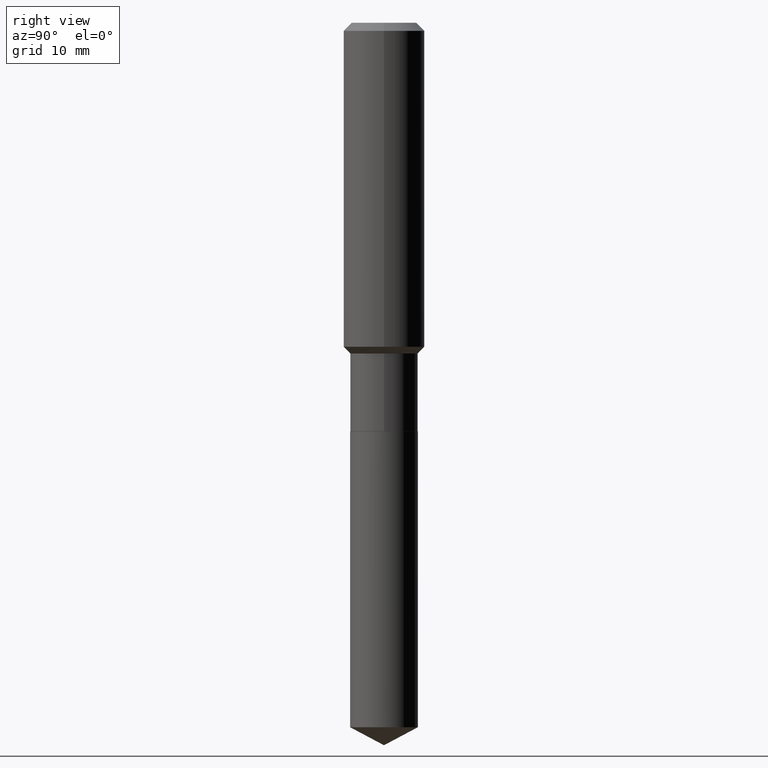
[diagram: clean part render]
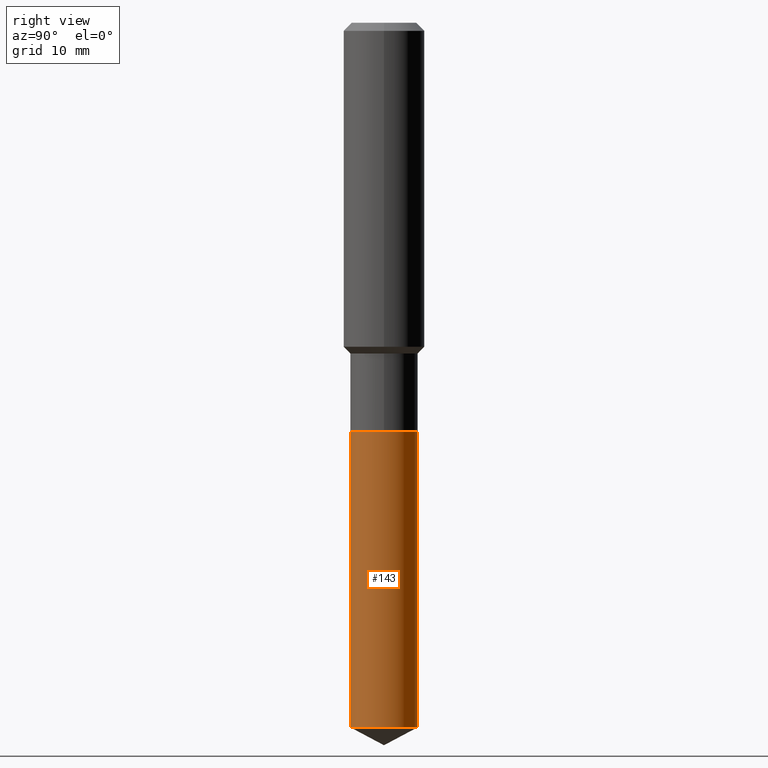
[diagram: same view with one face highlighted and labeled with its STEP entity id]
A machine part, right view. The second image highlights one B-rep face of the part: STEP entity #143.
In plain terms, the highlighted cylindrical surface (edge-blend (fillet) strip) has radius 4.1669 mm, axis along (-0, 0, 1).
Its self-contained STEP definition (entity closure, byte-faithful):
#1 = DIRECTION ( 'NONE',  ( -2.445609389385377886E-29, 3.491280015698900984E-15, 1.000000000000000000 ) ) ;
#18 = ORIENTED_EDGE ( 'NONE', *, *, #308, .T. ) ;
#19 = CARTESIAN_POINT ( 'NONE',  ( 1.165645358014527787E-15, 0.1640499999999880942, -3.416673067735934932 ) ) ;
#53 = VECTOR ( 'NONE', #307, 39.37007874015748143 ) ;
#58 = VERTEX_POINT ( 'NONE', #344 ) ;
#80 = FACE_OUTER_BOUND ( 'NONE', #264, .T. ) ;
#84 = DIRECTION ( 'NONE',  ( -6.982962677686265133E-15, -1.000000000000000000, 3.330506545156066257E-15 ) ) ;
#88 = ORIENTED_EDGE ( 'NONE', *, *, #133, .F. ) ;
#93 = DIRECTION ( 'NONE',  ( -2.445609389385378166E-29, 3.491280015698900589E-15, 1.000000000000000000 ) ) ;
#111 = AXIS2_PLACEMENT_3D ( 'NONE', #298, #113, #408 ) ;
#113 = DIRECTION ( 'NONE',  ( -2.445609389385377886E-29, 3.491280015698900984E-15, 1.000000000000000000 ) ) ;
#115 = LINE ( 'NONE', #267, #200 ) ;
#121 = CYLINDRICAL_SURFACE ( 'NONE', #184, 0.1640500000000000014 ) ;
#133 = EDGE_CURVE ( 'NONE', #58, #402, #156, .T. ) ;
#143 = ADVANCED_FACE ( 'NONE', ( #80 ), #121, .T. ) ;
#156 = CIRCLE ( 'NONE', #379, 0.1640500000000000014 ) ;
#178 = CARTESIAN_POINT ( 'NONE',  ( 1.165645358014492485E-15, 0.1640499999999930625, -1.981600000000000250 ) ) ;
#184 = AXIS2_PLACEMENT_3D ( 'NONE', #342, #305, #84 ) ;
#188 = CARTESIAN_POINT ( 'NONE',  ( -1.145555027274348438E-15, -0.1640500000000119085, -3.416673067735933600 ) ) ;
#200 = VECTOR ( 'NONE', #93, 39.37007874015748143 ) ;
#203 = EDGE_CURVE ( 'NONE', #446, #402, #370, .T. ) ;
#217 = ORIENTED_EDGE ( 'NONE', *, *, #365, .F. ) ;
#264 = EDGE_LOOP ( 'NONE', ( #18, #337, #88, #217 ) ) ;
#267 = CARTESIAN_POINT ( 'NONE',  ( -1.145555027274383345E-15, -0.1640500000000069125, -1.981599999999999140 ) ) ;
#297 = DIRECTION ( 'NONE',  ( -6.982962677686265133E-15, -1.000000000000000000, 3.330506545156066257E-15 ) ) ;
#298 = CARTESIAN_POINT ( 'NONE',  ( 8.355569155245545559E-29, -1.192896134350575963E-14, -3.416673067735934044 ) ) ;
#305 = DIRECTION ( 'NONE',  ( -2.445609389385377886E-29, 3.491280015698900984E-15, 1.000000000000000000 ) ) ;
#307 = DIRECTION ( 'NONE',  ( -2.445609389385378166E-29, 3.491280015698900589E-15, 1.000000000000000000 ) ) ;
#308 = EDGE_CURVE ( 'NONE', #316, #446, #464, .T. ) ;
#316 = VERTEX_POINT ( 'NONE', #188 ) ;
#337 = ORIENTED_EDGE ( 'NONE', *, *, #203, .T. ) ;
#342 = CARTESIAN_POINT ( 'NONE',  ( 4.845940986336466171E-29, -6.918719421051576678E-15, -1.981599999999999806 ) ) ;
#344 = CARTESIAN_POINT ( 'NONE',  ( -1.145555027274383345E-15, -0.1640500000000069125, -1.981599999999999140 ) ) ;
#347 = CARTESIAN_POINT ( 'NONE',  ( 1.165645358014527787E-15, 0.1640499999999930625, -1.981600000000000250 ) ) ;
#365 = EDGE_CURVE ( 'NONE', #316, #58, #115, .T. ) ;
#370 = LINE ( 'NONE', #178, #53 ) ;
#379 = AXIS2_PLACEMENT_3D ( 'NONE', #409, #1, #297 ) ;
#402 = VERTEX_POINT ( 'NONE', #347 ) ;
#408 = DIRECTION ( 'NONE',  ( -6.982962677686265133E-15, -1.000000000000000000, 3.330506545156066257E-15 ) ) ;
#409 = CARTESIAN_POINT ( 'NONE',  ( 4.845940986336466171E-29, -6.918719421051576678E-15, -1.981599999999999806 ) ) ;
#446 = VERTEX_POINT ( 'NONE', #19 ) ;
#464 = CIRCLE ( 'NONE', #111, 0.1640500000000000014 ) ;